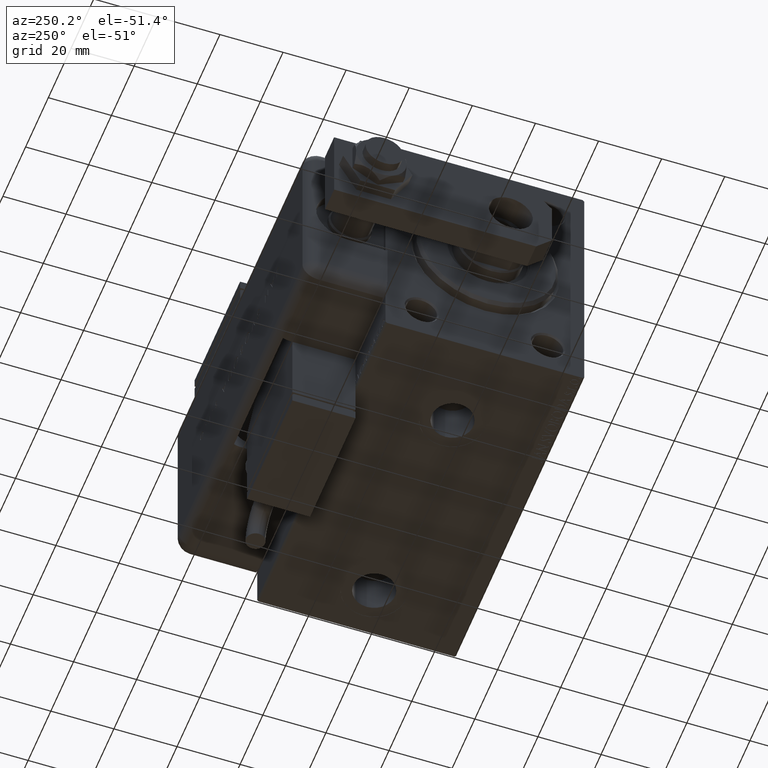
[diagram: clean part render]
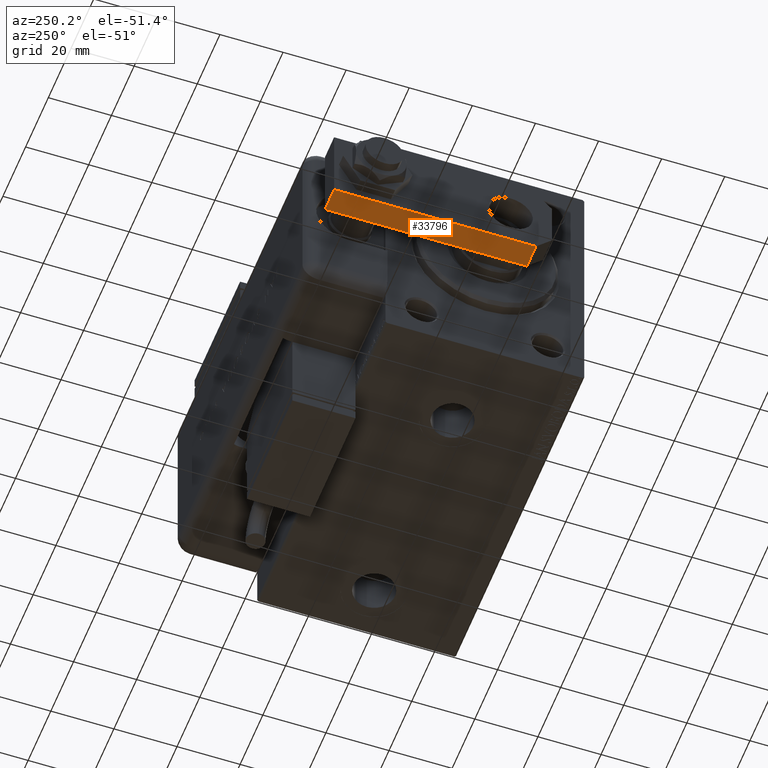
[diagram: same view with one face highlighted and labeled with its STEP entity id]
A machine part, auxiliary view. The second image highlights one B-rep face of the part: STEP entity #33796.
In plain terms, the highlighted planar face has unit normal (0, -0, 1).
Its self-contained STEP definition (entity closure, byte-faithful):
#4773 = CARTESIAN_POINT ( 'NONE',  ( 12.50000000000000178, 69.00000000000000000, 0.000000000000000000 ) ) ;
#5706 = DIRECTION ( 'NONE',  ( -1.257045997084642611E-16, 1.000000000000000000, 0.000000000000000000 ) ) ;
#7782 = CARTESIAN_POINT ( 'NONE',  ( 12.50000000000000178, 69.00000000000000000, 8.000000000000000000 ) ) ;
#14329 = DIRECTION ( 'NONE',  ( -1.257045997084642611E-16, 1.000000000000000000, 0.000000000000000000 ) ) ;
#15520 = DIRECTION ( 'NONE',  ( 0.000000000000000000, 0.000000000000000000, -1.000000000000000000 ) ) ;
#16089 = VERTEX_POINT ( 'NONE', #7782 ) ;
#16624 = CARTESIAN_POINT ( 'NONE',  ( 12.50000000000001066, 5.000000000000003553, 0.000000000000000000 ) ) ;
#18532 = CARTESIAN_POINT ( 'NONE',  ( 12.50000000000001066, 0.000000000000000000, 8.000000000000000000 ) ) ;
#21113 = LINE ( 'NONE', #40038, #39486 ) ;
#22273 = DIRECTION ( 'NONE',  ( 1.257045997084642611E-16, -1.000000000000000000, 0.000000000000000000 ) ) ;
#23191 = FACE_OUTER_BOUND ( 'NONE', #50831, .T. ) ;
#25168 = LINE ( 'NONE', #48140, #57408 ) ;
#26840 = CARTESIAN_POINT ( 'NONE',  ( 12.50000000000001066, 5.000000000000003553, 8.000000000000000000 ) ) ;
#27594 = EDGE_CURVE ( 'NONE', #33234, #16089, #25168, .T. ) ;
#29971 = EDGE_CURVE ( 'NONE', #39576, #33354, #57506, .T. ) ;
#31483 = ORIENTED_EDGE ( 'NONE', *, *, #34927, .T. ) ;
#33234 = VERTEX_POINT ( 'NONE', #26840 ) ;
#33354 = VERTEX_POINT ( 'NONE', #4773 ) ;
#33796 = ADVANCED_FACE ( 'NONE', ( #23191 ), #41811, .F. ) ;
#34927 = EDGE_CURVE ( 'NONE', #33234, #39576, #44692, .T. ) ;
#39486 = VECTOR ( 'NONE', #58326, 1000.000000000000000 ) ;
#39576 = VERTEX_POINT ( 'NONE', #16624 ) ;
#40038 = CARTESIAN_POINT ( 'NONE',  ( 12.50000000000000178, 69.00000000000000000, 8.000000000000000000 ) ) ;
#41811 = PLANE ( 'NONE',  #60536 ) ;
#43111 = ORIENTED_EDGE ( 'NONE', *, *, #27594, .F. ) ;
#43566 = CARTESIAN_POINT ( 'NONE',  ( 12.50000000000001066, 0.000000000000000000, 0.000000000000000000 ) ) ;
#44692 = LINE ( 'NONE', #58627, #51681 ) ;
#48140 = CARTESIAN_POINT ( 'NONE',  ( 12.50000000000001066, 0.000000000000000000, 8.000000000000000000 ) ) ;
#50246 = ORIENTED_EDGE ( 'NONE', *, *, #29971, .T. ) ;
#50831 = EDGE_LOOP ( 'NONE', ( #43111, #31483, #50246, #53387 ) ) ;
#51681 = VECTOR ( 'NONE', #15520, 1000.000000000000000 ) ;
#53387 = ORIENTED_EDGE ( 'NONE', *, *, #59673, .F. ) ;
#55524 = VECTOR ( 'NONE', #5706, 1000.000000000000000 ) ;
#55763 = DIRECTION ( 'NONE',  ( -1.000000000000000000, -1.257045997084642611E-16, 0.000000000000000000 ) ) ;
#57408 = VECTOR ( 'NONE', #14329, 1000.000000000000000 ) ;
#57506 = LINE ( 'NONE', #43566, #55524 ) ;
#58326 = DIRECTION ( 'NONE',  ( -0.000000000000000000, -0.000000000000000000, -1.000000000000000000 ) ) ;
#58627 = CARTESIAN_POINT ( 'NONE',  ( 12.50000000000001066, 5.000000000000003553, 8.000000000000000000 ) ) ;
#59673 = EDGE_CURVE ( 'NONE', #16089, #33354, #21113, .T. ) ;
#60536 = AXIS2_PLACEMENT_3D ( 'NONE', #18532, #55763, #22273 ) ;